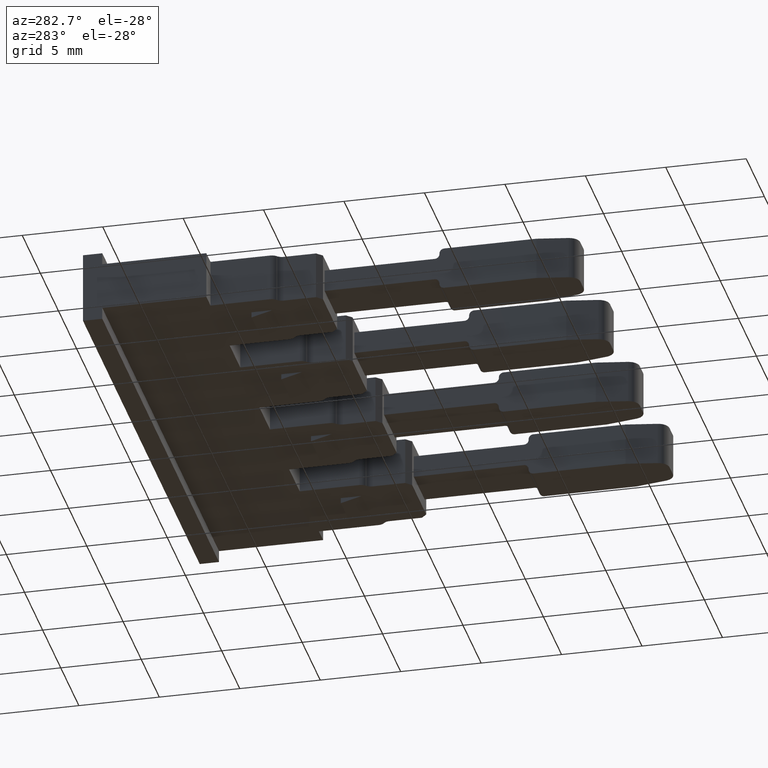
[diagram: clean part render]
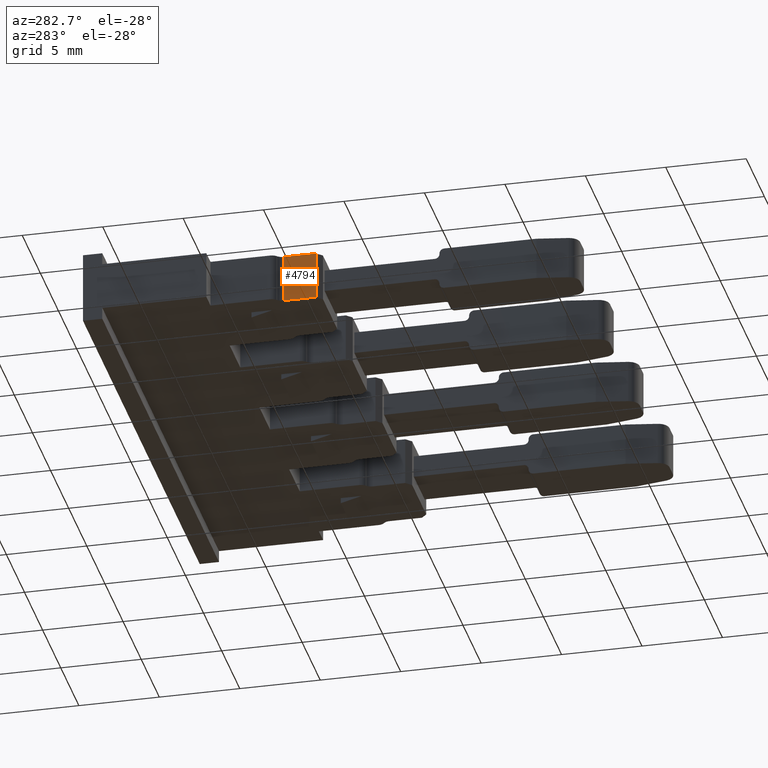
[diagram: same view with one face highlighted and labeled with its STEP entity id]
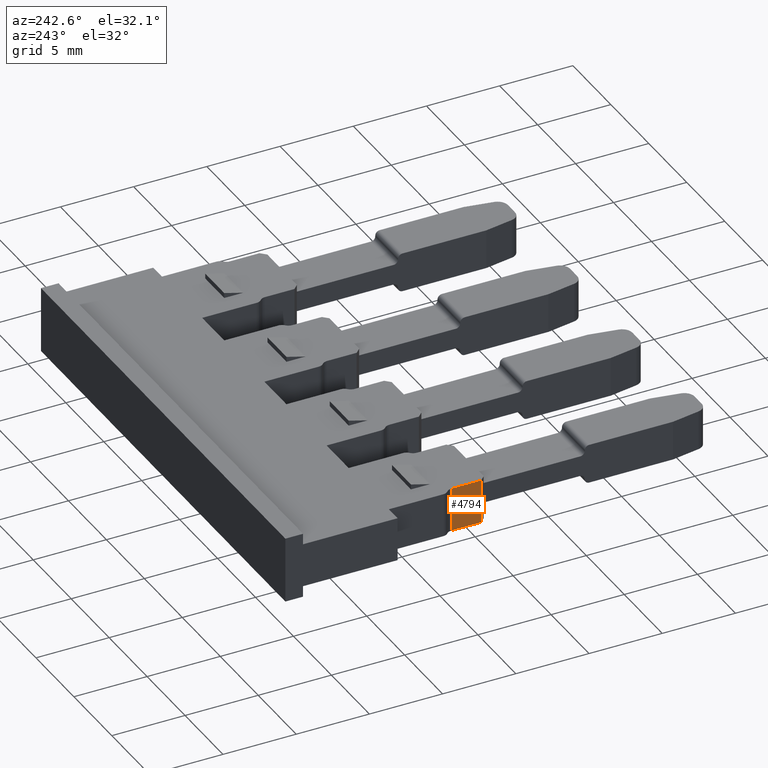
[diagram: same view with one face highlighted and labeled with its STEP entity id]
A machine part, auxiliary view. The second image highlights one B-rep face of the part: STEP entity #4794.
A second angle (auxiliary view) of the same face is appended — the face is thin or edge-on in the first view.
In plain terms, the highlighted planar face has unit normal (1, -0, 0).
Its self-contained STEP definition (entity closure, byte-faithful):
#29 = VERTEX_POINT ( 'NONE', #514 ) ;
#32 = VERTEX_POINT ( 'NONE', #486 ) ;
#43 = VERTEX_POINT ( 'NONE', #478 ) ;
#64 = VERTEX_POINT ( 'NONE', #512 ) ;
#416 = EDGE_LOOP ( 'NONE', ( #3894, #3885, #3793, #3865 ) ) ;
#478 = CARTESIAN_POINT ( 'NONE',  ( 1124.294467228829700, 659.9592796230510900, -1.156482317317871300E-015 ) ) ;
#486 = CARTESIAN_POINT ( 'NONE',  ( 1124.294467228829700, 659.9592796230510900, 3.000000000000000400 ) ) ;
#512 = CARTESIAN_POINT ( 'NONE',  ( 1124.294468933274600, 661.9736497164254800, -1.084202172485504400E-016 ) ) ;
#514 = CARTESIAN_POINT ( 'NONE',  ( 1124.294468933274200, 661.9736493991215400, 3.000000000000000000 ) ) ;
#1098 = PLANE ( 'NONE',  #4187 ) ;
#1099 = FACE_OUTER_BOUND ( 'NONE', #416, .T. ) ;
#1102 = CARTESIAN_POINT ( 'NONE',  ( 1124.294468933274600, 661.9736497164254800, 3.000000000000000000 ) ) ;
#1103 = DIRECTION ( 'NONE',  ( 1.269214834134032900E-006, 0.9999999999991945300, 0.0000000000000000000 ) ) ;
#1108 = DIRECTION ( 'NONE',  ( 0.9999999999991945300, -1.269214834134032900E-006, 0.0000000000000000000 ) ) ;
#2002 = CARTESIAN_POINT ( 'NONE',  ( 1124.294466376607300, 659.9592804752735400, 3.000000000000000000 ) ) ;
#2014 = DIRECTION ( 'NONE',  ( 0.0000000000000000000, -0.0000000000000000000, -1.000000000000000000 ) ) ;
#2016 = LINE ( 'NONE', #2002, #4090 ) ;
#2018 = LINE ( 'NONE', #2019, #4123 ) ;
#2019 = CARTESIAN_POINT ( 'NONE',  ( 1124.294468933274600, 661.9736497164254800, 3.000000000000000000 ) ) ;
#2020 = DIRECTION ( 'NONE',  ( -0.0000000000000000000, 0.0000000000000000000, 1.000000000000000000 ) ) ;
#2876 = LINE ( 'NONE', #2878, #4451 ) ;
#2878 = CARTESIAN_POINT ( 'NONE',  ( 1124.294468933274600, 661.9736497164254800, 3.000000000000000000 ) ) ;
#2880 = DIRECTION ( 'NONE',  ( -1.269214834134032900E-006, -0.9999999999991945300, -0.0000000000000000000 ) ) ;
#2933 = LINE ( 'NONE', #2952, #4471 ) ;
#2936 = DIRECTION ( 'NONE',  ( 0.0000000000000000000, -1.000000000000000000, -0.0000000000000000000 ) ) ;
#2952 = CARTESIAN_POINT ( 'NONE',  ( 1124.294468933274600, 662.7578638201010800, 0.0000000000000000000 ) ) ;
#3793 = ORIENTED_EDGE ( 'NONE', *, *, #5322, .F. ) ;
#3865 = ORIENTED_EDGE ( 'NONE', *, *, #5021, .T. ) ;
#3885 = ORIENTED_EDGE ( 'NONE', *, *, #4996, .F. ) ;
#3894 = ORIENTED_EDGE ( 'NONE', *, *, #5313, .F. ) ;
#4090 = VECTOR ( 'NONE', #2014, 1000.000000000000000 ) ;
#4123 = VECTOR ( 'NONE', #2020, 1000.000000000000000 ) ;
#4187 = AXIS2_PLACEMENT_3D ( 'NONE', #1102, #1108, #1103 ) ;
#4451 = VECTOR ( 'NONE', #2880, 1000.000000000000100 ) ;
#4471 = VECTOR ( 'NONE', #2936, 1000.000000000000000 ) ;
#4794 = ADVANCED_FACE ( 'NONE', ( #1099 ), #1098, .F. ) ;
#4996 = EDGE_CURVE ( 'NONE', #29, #32, #2876, .T. ) ;
#5021 = EDGE_CURVE ( 'NONE', #64, #43, #2933, .T. ) ;
#5313 = EDGE_CURVE ( 'NONE', #32, #43, #2016, .T. ) ;
#5322 = EDGE_CURVE ( 'NONE', #64, #29, #2018, .T. ) ;